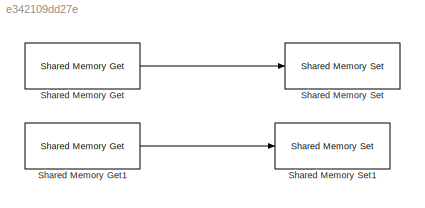
MODEL slx_e342109dd27e
KIND model
CONFIG AbsTol = auto
CONFIG EnableMultiTasking = off
CONFIG FixedStep = 0.2
CONFIG MaxStep = auto
CONFIG MinStep = auto
CONFIG RelTol = 1e-3
CONFIG SampleTimeConstraint = Unconstrained
CONFIG Solver = FixedStepAuto
CONFIG SolverName = FixedStepAuto
CONFIG StartTime = 0.0
CONFIG StopTime = inf
BLOCK [Reference] Shared Memory Get  REF=SimpoleSystem/ShareMemoryBlockset/Shared Memory Get
  Ports = [0, 1]
  SourceBlock = SimpoleSystem/ShareMemoryBlockset/Shared Memory Get
  SourceProductName = SimpoleSystem
BLOCK [Reference] Shared Memory Get1  REF=SimpoleSystem/ShareMemoryBlockset/Shared Memory Get
  Ports = [0, 1]
  SourceBlock = SimpoleSystem/ShareMemoryBlockset/Shared Memory Get
  SourceProductName = SimpoleSystem
BLOCK [Reference] Shared Memory Set  REF=SimpoleSystem/ShareMemoryBlockset/Shared Memory Set
  Ports = [1]
  SourceBlock = SimpoleSystem/ShareMemoryBlockset/Shared Memory Set
  SourceProductName = SimpoleSystem
BLOCK [Reference] Shared Memory Set1  REF=SimpoleSystem/ShareMemoryBlockset/Shared Memory Set
  Ports = [1]
  SourceBlock = SimpoleSystem/ShareMemoryBlockset/Shared Memory Set
  SourceProductName = SimpoleSystem
LINE Shared Memory Get1:1 -> Shared Memory Set1:1
LINE Shared Memory Get:1 -> Shared Memory Set:1
